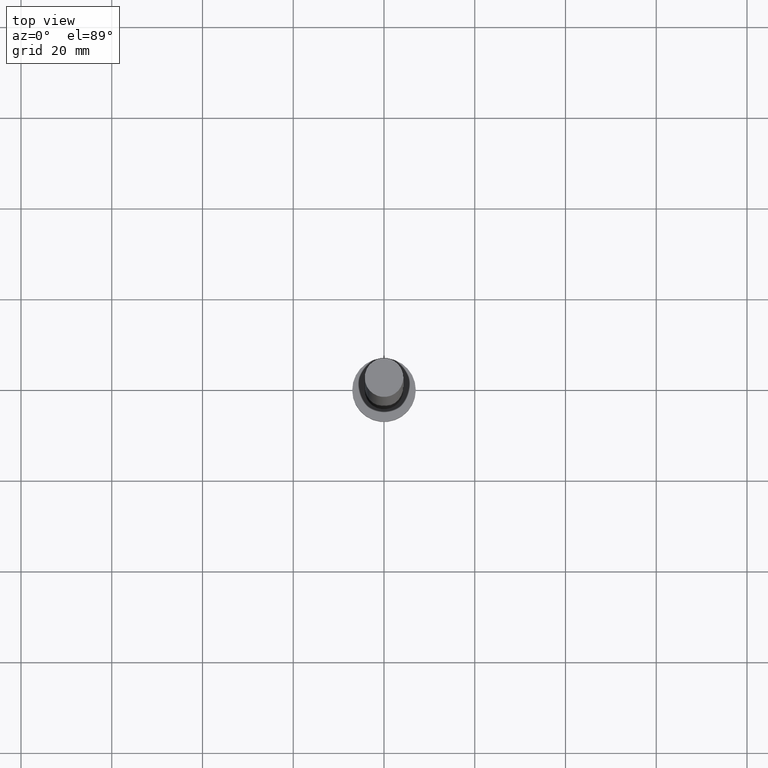
[diagram: clean part render]
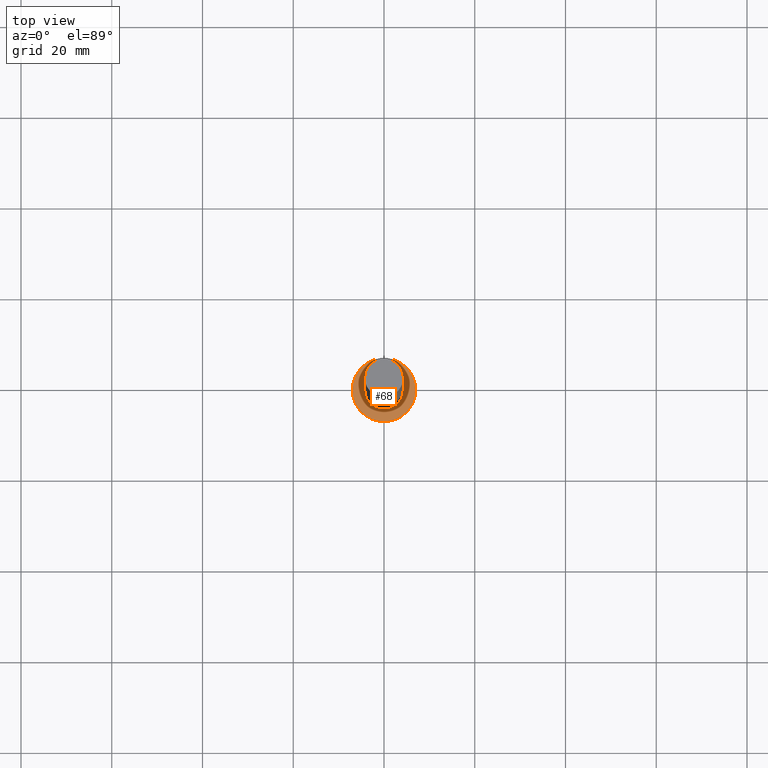
[diagram: same view with one face highlighted and labeled with its STEP entity id]
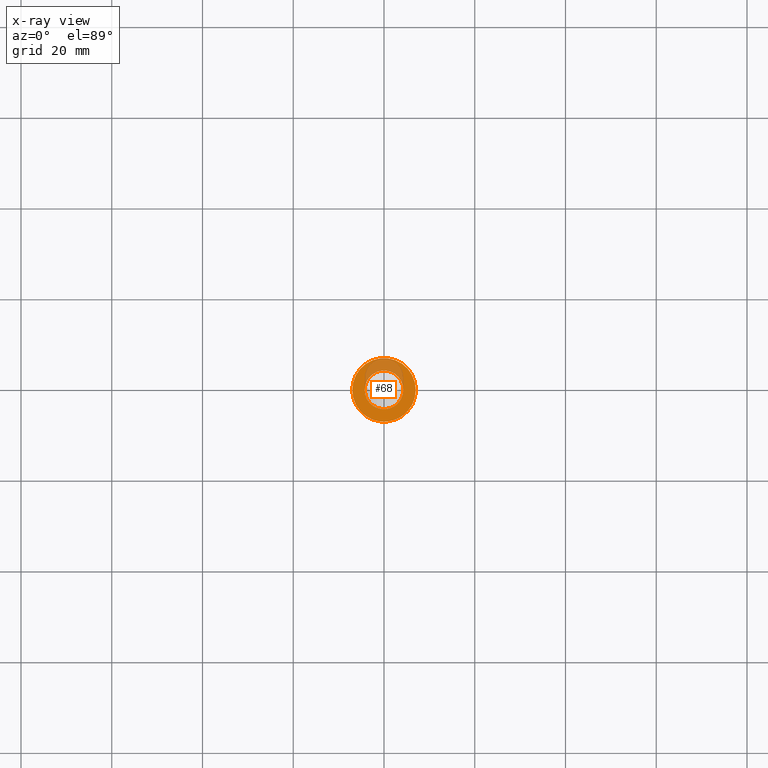
[diagram: x-ray of the same camera — body ghosted, the highlighted face saturated]
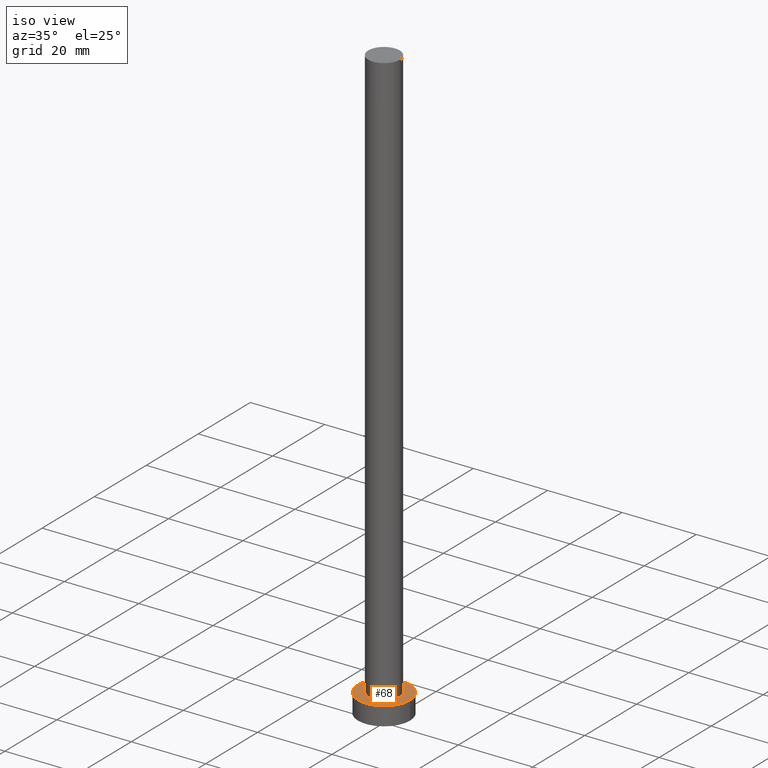
[diagram: same view with one face highlighted and labeled with its STEP entity id]
A machine part, top view. The second image highlights one B-rep face of the part: STEP entity #68.
The next image is the same camera in x-ray: the body ghosted, the highlighted face saturated — about 24% of this face is hidden behind the body in this view.
A second angle (iso view) of the same face is appended — the face is thin or edge-on in the first view.
In plain terms, the highlighted planar face has unit normal (0, 0, 1).
Its self-contained STEP definition (entity closure, byte-faithful):
#3 = VERTEX_POINT ( 'NONE', #176 ) ;
#4 = EDGE_CURVE ( 'NONE', #3, #19, #236, .T. ) ;
#6 = ORIENTED_EDGE ( 'NONE', *, *, #142, .T. ) ;
#13 = CARTESIAN_POINT ( 'NONE',  ( 7.000000000000000000, 8.572527594031473190E-16, 5.000000000000000000 ) ) ;
#16 = CIRCLE ( 'NONE', #112, 7.000000000000000000 ) ;
#19 = VERTEX_POINT ( 'NONE', #198 ) ;
#35 = CARTESIAN_POINT ( 'NONE',  ( 0.000000000000000000, 0.000000000000000000, 5.000000000000000000 ) ) ;
#37 = AXIS2_PLACEMENT_3D ( 'NONE', #103, #50, #225 ) ;
#39 = EDGE_LOOP ( 'NONE', ( #141, #6 ) ) ;
#49 = DIRECTION ( 'NONE',  ( 0.000000000000000000, 0.000000000000000000, 1.000000000000000000 ) ) ;
#50 = DIRECTION ( 'NONE',  ( 0.000000000000000000, 0.000000000000000000, 1.000000000000000000 ) ) ;
#59 = DIRECTION ( 'NONE',  ( 0.000000000000000000, 0.000000000000000000, 1.000000000000000000 ) ) ;
#68 = ADVANCED_FACE ( 'NONE', ( #89, #93 ), #149, .T. ) ;
#78 = CARTESIAN_POINT ( 'NONE',  ( 0.000000000000000000, 0.000000000000000000, 5.000000000000000000 ) ) ;
#81 = CIRCLE ( 'NONE', #37, 4.250000000000000000 ) ;
#87 = EDGE_CURVE ( 'NONE', #154, #121, #126, .T. ) ;
#89 = FACE_BOUND ( 'NONE', #122, .T. ) ;
#90 = DIRECTION ( 'NONE',  ( 1.000000000000000000, 0.000000000000000000, -0.000000000000000000 ) ) ;
#93 = FACE_OUTER_BOUND ( 'NONE', #39, .T. ) ;
#100 = DIRECTION ( 'NONE',  ( 1.000000000000000000, 0.000000000000000000, 0.000000000000000000 ) ) ;
#103 = CARTESIAN_POINT ( 'NONE',  ( 0.000000000000000000, 0.000000000000000000, 5.000000000000000000 ) ) ;
#108 = DIRECTION ( 'NONE',  ( 1.000000000000000000, 0.000000000000000000, 0.000000000000000000 ) ) ;
#112 = AXIS2_PLACEMENT_3D ( 'NONE', #113, #49, #162 ) ;
#113 = CARTESIAN_POINT ( 'NONE',  ( 0.000000000000000000, 0.000000000000000000, 5.000000000000000000 ) ) ;
#121 = VERTEX_POINT ( 'NONE', #13 ) ;
#122 = EDGE_LOOP ( 'NONE', ( #223, #155 ) ) ;
#126 = CIRCLE ( 'NONE', #219, 7.000000000000000000 ) ;
#129 = CARTESIAN_POINT ( 'NONE',  ( -7.000000000000000000, 0.000000000000000000, 5.000000000000000000 ) ) ;
#141 = ORIENTED_EDGE ( 'NONE', *, *, #87, .T. ) ;
#142 = EDGE_CURVE ( 'NONE', #121, #154, #16, .T. ) ;
#149 = PLANE ( 'NONE',  #175 ) ;
#154 = VERTEX_POINT ( 'NONE', #129 ) ;
#155 = ORIENTED_EDGE ( 'NONE', *, *, #199, .F. ) ;
#162 = DIRECTION ( 'NONE',  ( 1.000000000000000000, 0.000000000000000000, 0.000000000000000000 ) ) ;
#175 = AXIS2_PLACEMENT_3D ( 'NONE', #191, #211, #90 ) ;
#176 = CARTESIAN_POINT ( 'NONE',  ( -4.250000000000000000, 0.000000000000000000, 5.000000000000000000 ) ) ;
#191 = CARTESIAN_POINT ( 'NONE',  ( 0.000000000000000000, 0.000000000000000000, 5.000000000000000000 ) ) ;
#198 = CARTESIAN_POINT ( 'NONE',  ( 4.250000000000000000, 5.204748896376250699E-16, 5.000000000000000000 ) ) ;
#199 = EDGE_CURVE ( 'NONE', #19, #3, #81, .T. ) ;
#202 = AXIS2_PLACEMENT_3D ( 'NONE', #78, #59, #100 ) ;
#211 = DIRECTION ( 'NONE',  ( 0.000000000000000000, 0.000000000000000000, 1.000000000000000000 ) ) ;
#219 = AXIS2_PLACEMENT_3D ( 'NONE', #35, #226, #108 ) ;
#223 = ORIENTED_EDGE ( 'NONE', *, *, #4, .F. ) ;
#225 = DIRECTION ( 'NONE',  ( 1.000000000000000000, 0.000000000000000000, 0.000000000000000000 ) ) ;
#226 = DIRECTION ( 'NONE',  ( 0.000000000000000000, 0.000000000000000000, 1.000000000000000000 ) ) ;
#236 = CIRCLE ( 'NONE', #202, 4.250000000000000000 ) ;